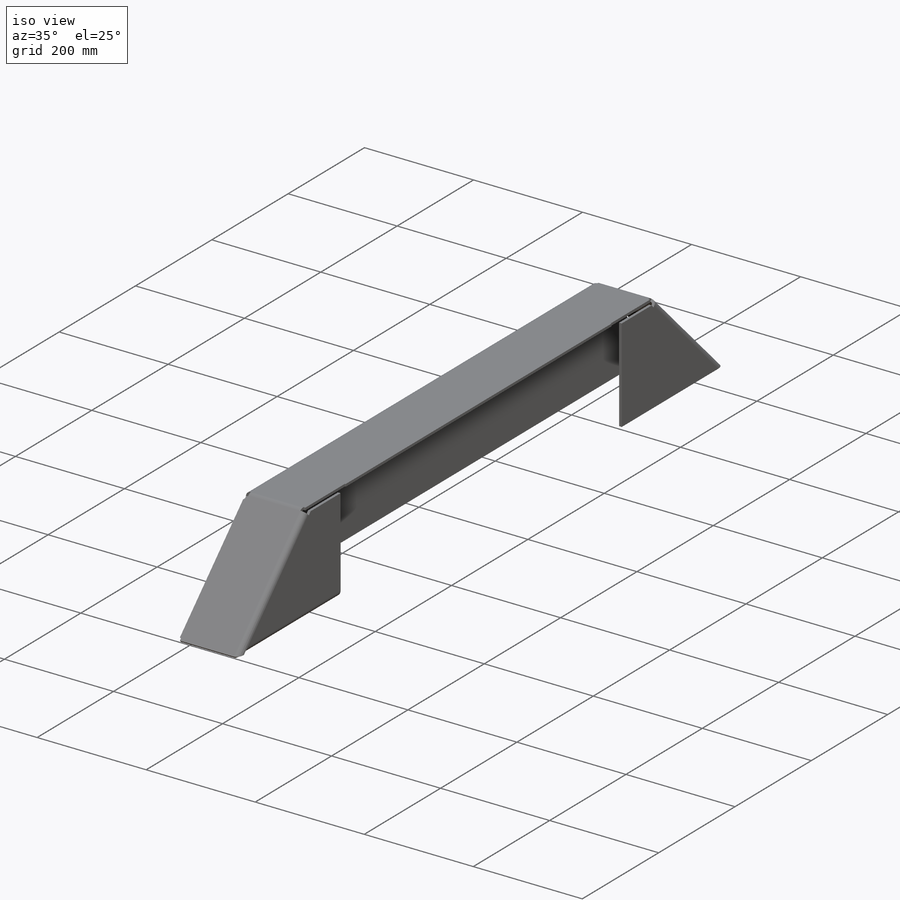
[diagram: iso view]
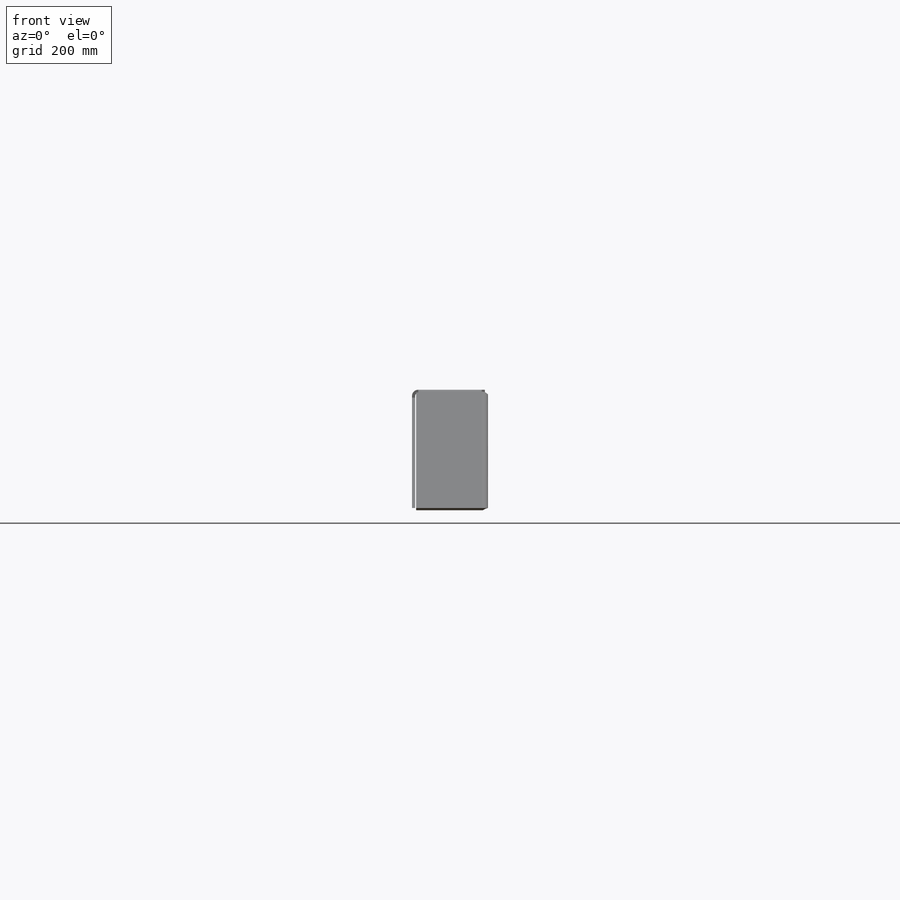
[diagram: front view]
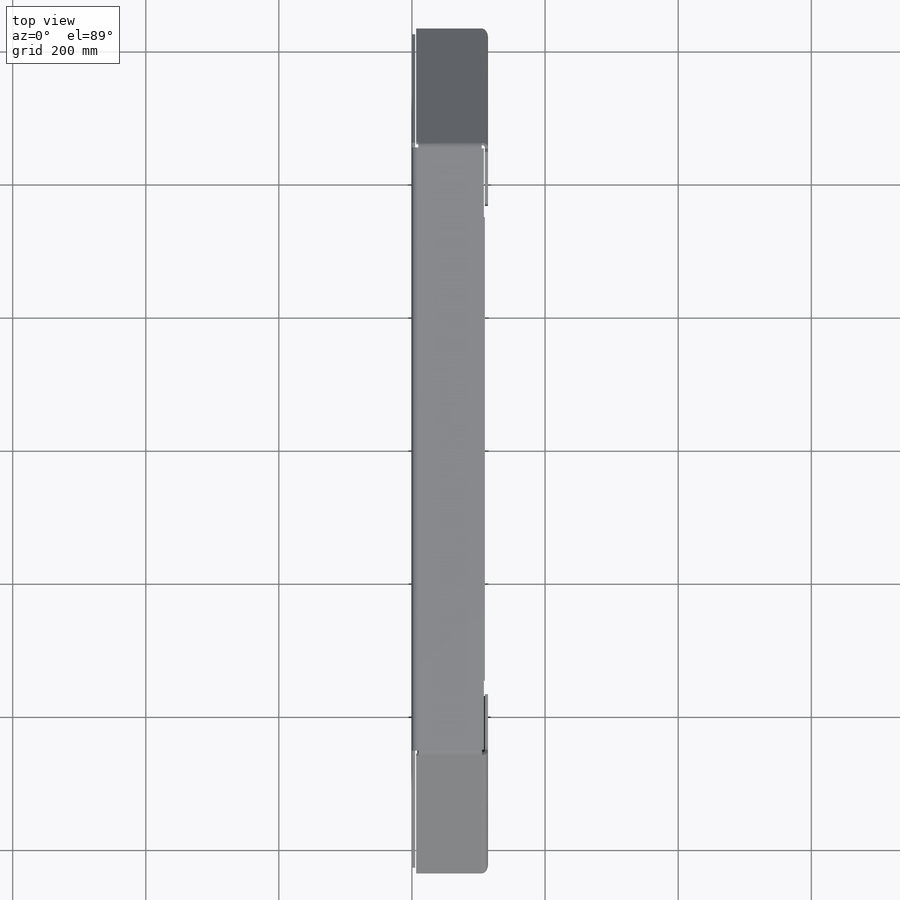
[diagram: top view]
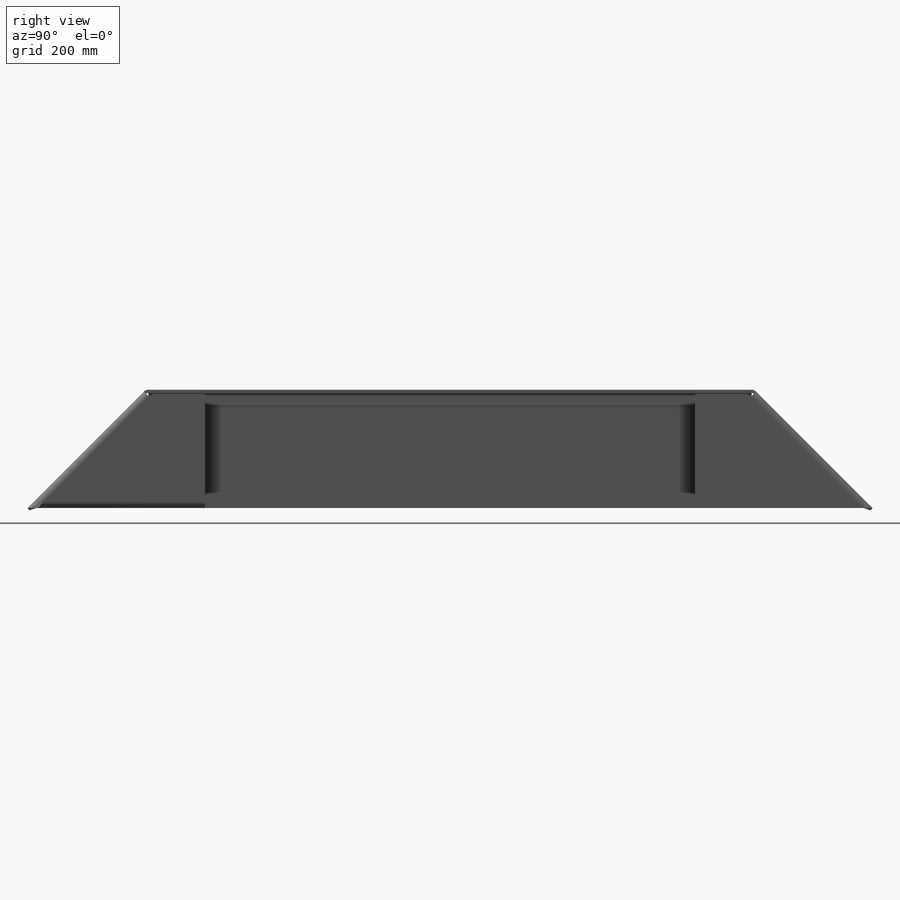
[diagram: right view]
SOLIDWORKS PART (.sldprt)
format: sldprt  version: not decoded by parser v0  size: 324,096 bytes
history: native  units: mm
features: sketch x9, sheet_metal_op x2, material x1, extrude x1, shell x1, cut_extrude x1 + 2 further entries (+12 scaffold rows collapsed; 2 parser-record rows omitted)
feature tree (31):
  scaffold x12  (default folders/planes/origin — collapsed)
  material  "Material <not specified>"
  sketch  "Sketch1"  dims[D1=914.4mm D2=177.8mm D3=~251.447171mm D4=1270.0mm]
  extrude  "Boss-Extrude1"  Depth=114.3mm
  shell  "Shell3"  Thickness=4.7625mm
  sketch  "Sketch8"  dims[D1=177.8mm D2=736.6mm]
  cut_extrude  "Cut-Extrude2"  Depth=4.7625mm SharpBend2=0 SharpBend3=0 SharpBend4=0 SharpBend5=0
  sketch  "Sketch16"  dims[c1.EdgeBend2=0.0 c1.D1=4.7625mm c1.D4=90.0deg c1.D5=6.0 c1.D8=~2.38125mm c1.D9=~2.38125mm c2.D1=4.7625mm c2.D2=500.0mm c2.D3=0.0mm c2.D6=10.0mm c2.D7=101.6mm]
  sketch  "Bend-Lines3"
  sketch  "Bounding-Box3"
  sheet_metal_op  "Sheet-Metal(5)"
  "Flat-Pattern(5)"
  sketch  "Bend-Lines4"
  sketch  "Bounding-Box4"
  parser-record x2  (decoder bookkeeping rows leaked as tree rows — omitted from the tree; the rows remain in map.json)
  sheet_metal_op  "Sheet-Metal(7)"
  "Flat-Pattern(5)"
  sketch  "Bend-Lines4"
  sketch  "Bounding-Box4"
decode coverage: 6 of 14 modeling features carry decoded parameters; 2 rows unclassified (native names shown)
note: ~ marks probable driven/reference dimensions
note: suppression state not decoded; provenance and decode notes live in map.json
